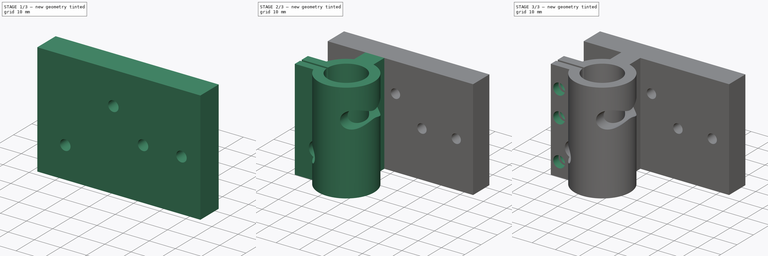
[diagram: build sequence overview — one tinted view per stage of 3, left to right]
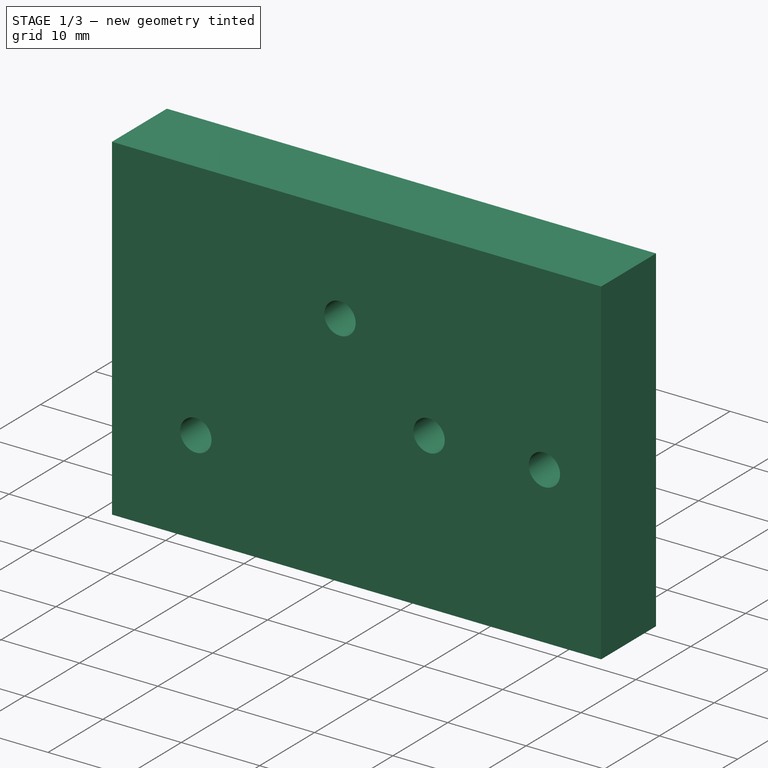
[diagram: stage 1 of 3 — iso view after this stage's code; geometry added in this stage tinted green]
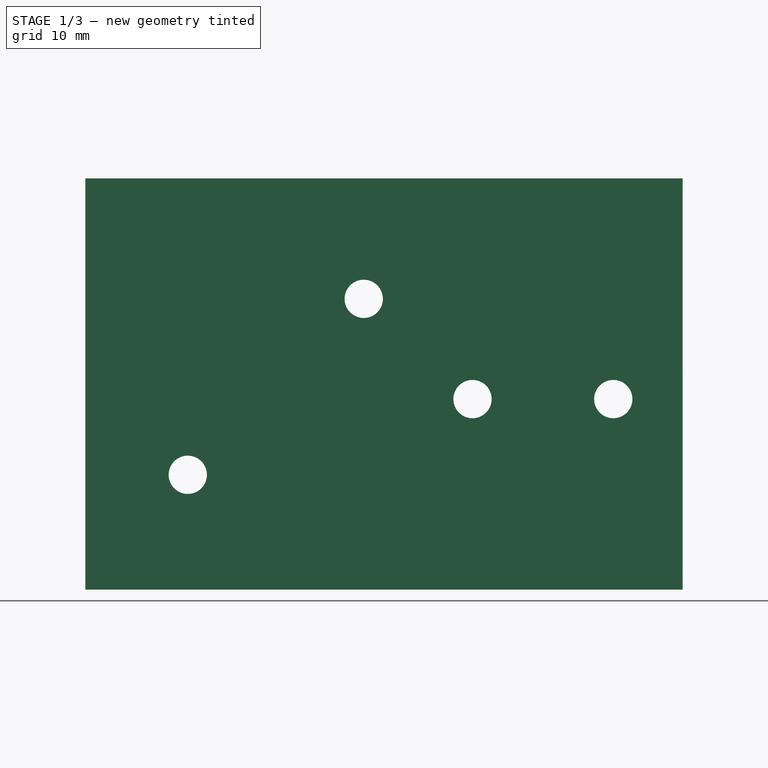
[diagram: stage 1 of 3 — front view after this stage's code; geometry added in this stage tinted green]
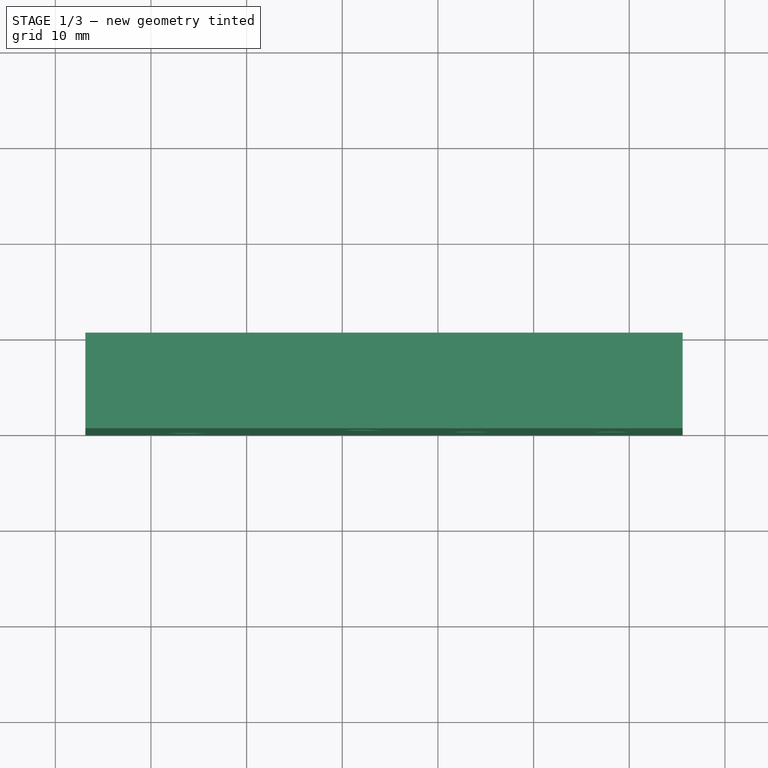
[diagram: stage 1 of 3 — top view after this stage's code; geometry added in this stage tinted green]
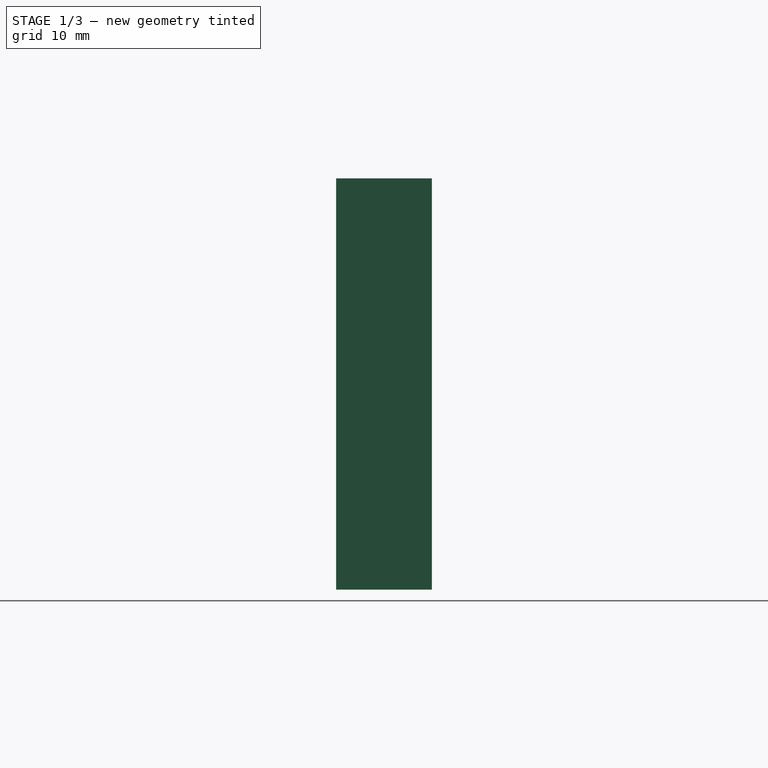
[diagram: stage 1 of 3 — right view after this stage's code; geometry added in this stage tinted green]
FCSTD DOCUMENT  (FreeCAD 0.19R24276 (Git))
Label: Fäste roterande fil ender3
License: All rights reserved
LicenseURL: http://en.wikipedia.org/wiki/All_rights_reserved
objects: Sketcher::SketchObject×7, PartDesign::Pocket×4, PartDesign::Pad×3, Image::ImagePlane×1, PartDesign::Body×1
note: 22 computed .brp shape members not serialized (recipe doc carries the construction recipe); baked Part::Feature solids carry a one-line shape summary decoded from their .brp

FEATURE [Image::ImagePlane] ImagePlane
  Placement = pos=(0,0,0) rot=(-1,0,0;4.71239rad)
  XSize = 142.846
  YSize = 191.791
FEATURE [Sketcher::SketchObject] Sketch
  FullyConstrained = false
  MapMode = 5
  Placement = pos=(0,0,0) rot=(1,0,0;1.5708rad)
  Support = -> [XZ_Plane]
  sketch-geometry (8):
    g0: Circle CenterX=-16.1509 CenterY=-10.9916 CenterZ=0 NormalX=0 NormalY=0 NormalZ=1 AngleXU=0 Radius=2
    g1: Circle CenterX=2.24296 CenterY=7.40224 CenterZ=0 NormalX=0 NormalY=0 NormalZ=1 AngleXU=0 Radius=2
    g2: Circle CenterX=13.6137 CenterY=-3.07666 CenterZ=0 NormalX=0 NormalY=0 NormalZ=1 AngleXU=0 Radius=2
    g3: Circle CenterX=28.3287 CenterY=-3.07666 CenterZ=0 NormalX=0 NormalY=0 NormalZ=1 AngleXU=0 Radius=2
    g4: LineSegment StartX=-26.8527 StartY=20 StartZ=0 EndX=35.5748 EndY=20 EndZ=0
    g5: LineSegment StartX=35.5748 StartY=20 StartZ=0 EndX=35.5748 EndY=-23 EndZ=0
    g6: LineSegment StartX=35.5748 StartY=-23 StartZ=0 EndX=-26.8527 EndY=-23 EndZ=0
    g7: LineSegment StartX=-26.8527 StartY=-23 StartZ=0 EndX=-26.8527 EndY=20 EndZ=0
  constraints (14):
    c: Coincident(g4,g5)
    c: Coincident(g5,g6)
    c: Coincident(g6,g7)
    c: Coincident(g7,g4)
    c: Horizontal(g4)
    c: Horizontal(g6)
    c: Vertical(g5)
    c: Vertical(g7)
    c: Radius(g1) = 2
    c: Radius(g0) = 2
    c: Radius(g2) = 2
    c: Radius(g3) = 2
    c: DistanceY(g-1,g4) = 20
    c: DistanceY(g7,g7) = 43
FEATURE [PartDesign::Pad] Pad
  Direction = (1,1,1)
  Length = 10
  Length2 = 100
  Placement = pos=(0,0,0) rot=(1,0,0;1.5708rad)
  Profile = -> Sketch
  Type = 0
FEATURE [Sketcher::SketchObject] Sketch001
  FullyConstrained = false
  MapMode = 5
  Placement = pos=(0,0,0) rot=(1,0,0;1.5708rad)
  Support = -> [XZ_Plane]
  sketch-geometry (4):
    g0: Circle CenterX=-16.2402 CenterY=9.93206 CenterZ=0 NormalX=0 NormalY=0 NormalZ=1 AngleXU=0 Radius=5.42474
    g1: Circle CenterX=24.0033 CenterY=9.59762 CenterZ=0 NormalX=0 NormalY=0 NormalZ=1 AngleXU=0 Radius=5.64478
    g2: Circle CenterX=13.5244 CenterY=-3.11083 CenterZ=0 NormalX=0 NormalY=0 NormalZ=1 AngleXU=0 Radius=3.63116
    g3: Circle CenterX=28.1279 CenterY=-2.99936 CenterZ=0 NormalX=0 NormalY=0 NormalZ=1 AngleXU=0 Radius=3.79188
FEATURE [PartDesign::Pocket] Pocket
  BaseFeature = -> Pad
  Length = 5
  Length2 = 100
  Placement = pos=(0,0,0) rot=(1,0,0;1.5708rad)
  Profile = -> Sketch001
  Reversed = true
  Type = 0
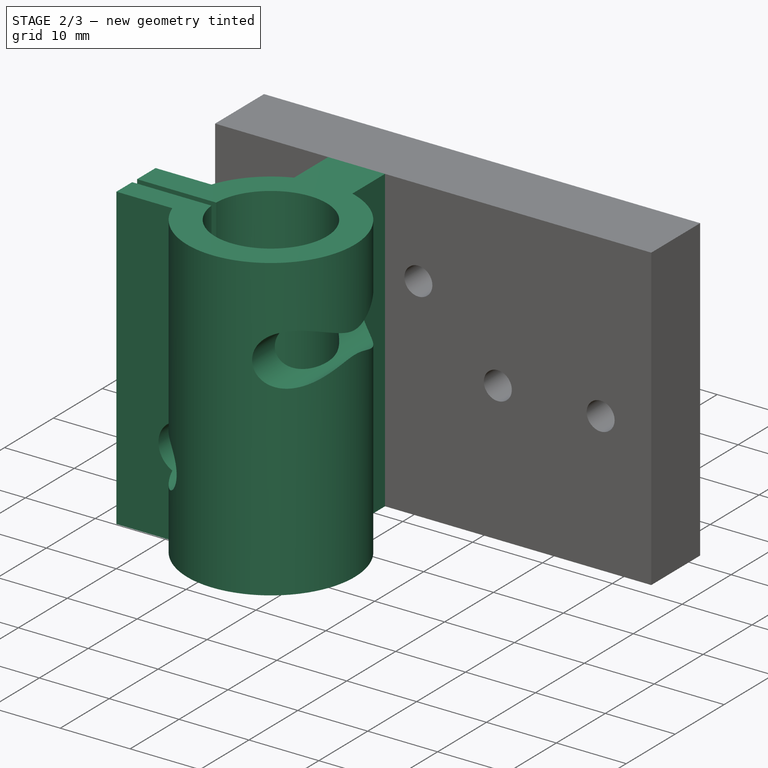
[diagram: stage 2 of 3 — iso view after this stage's code; geometry added in this stage tinted green]
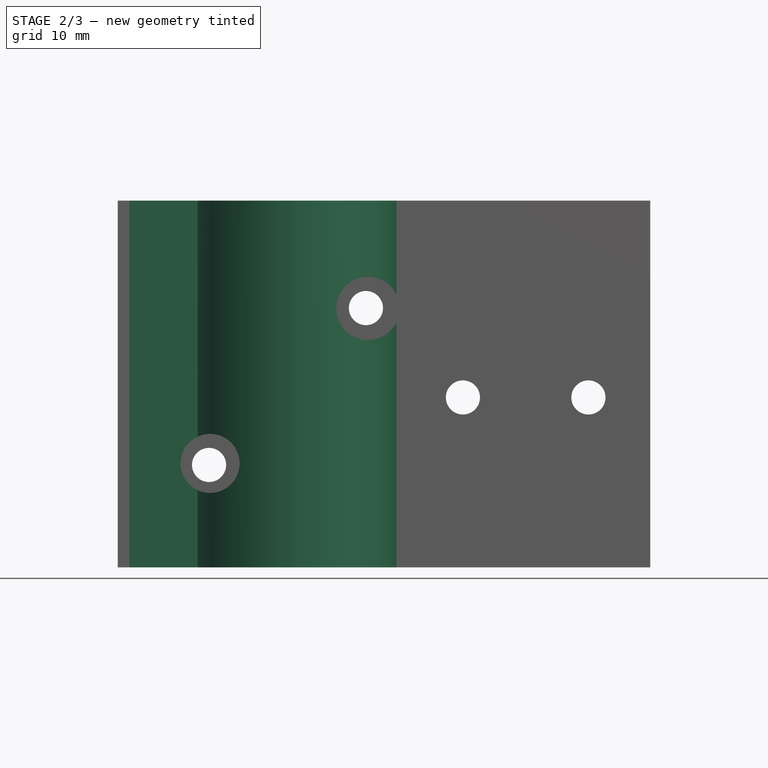
[diagram: stage 2 of 3 — front view after this stage's code; geometry added in this stage tinted green]
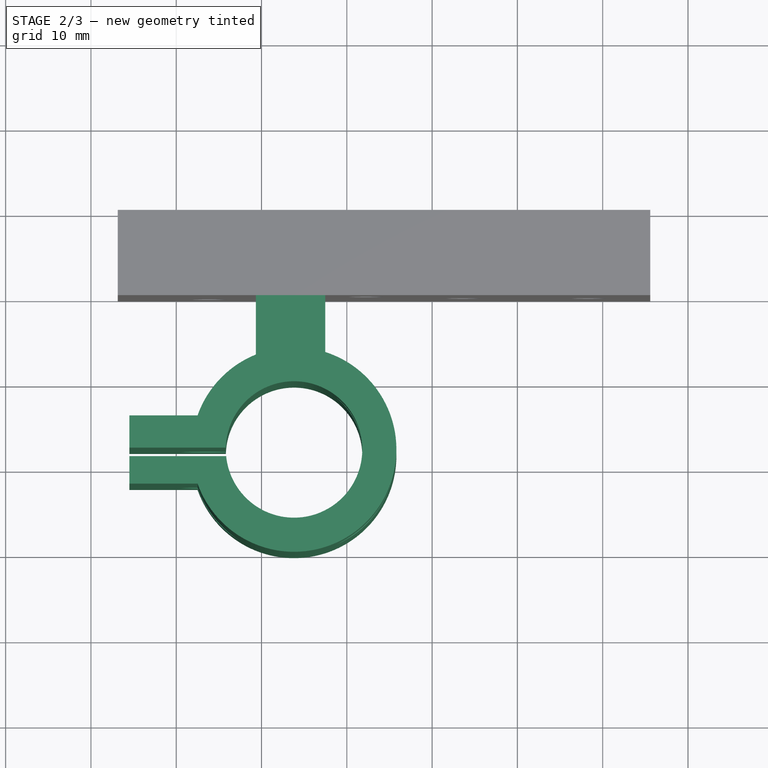
[diagram: stage 2 of 3 — top view after this stage's code; geometry added in this stage tinted green]
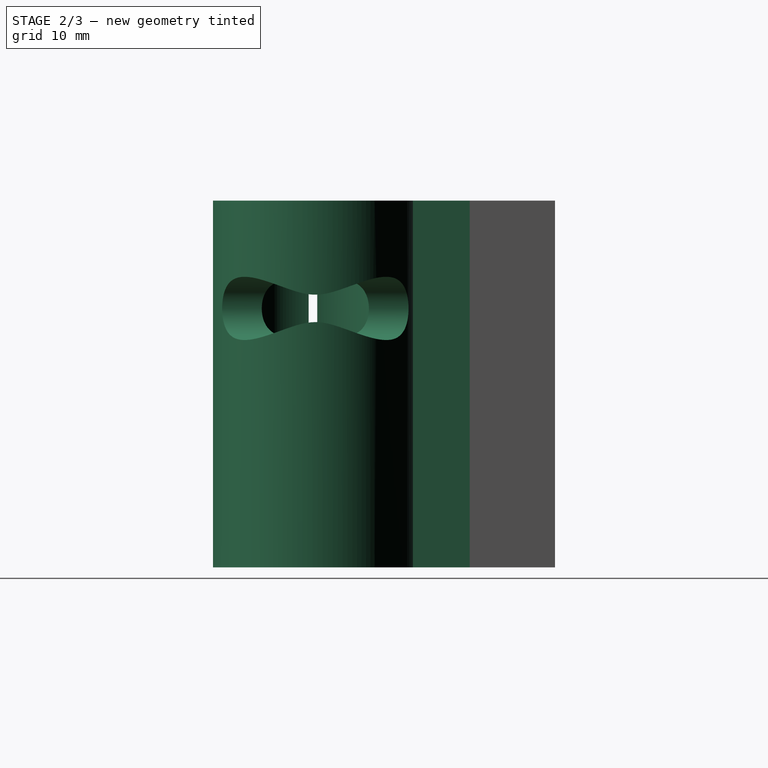
[diagram: stage 2 of 3 — right view after this stage's code; geometry added in this stage tinted green]
FEATURE [Sketcher::SketchObject] Sketch002
  FullyConstrained = false
  MapMode = 5
  Placement = pos=(0,0,0) rot=(1,0,0;1.5708rad)
  Support = -> [XZ_Plane]
  sketch-geometry (4):
    g0: LineSegment StartX=-2.52843 StartY=20 StartZ=0 EndX=-10.6663 EndY=20 EndZ=0
    g1: LineSegment StartX=-10.6663 StartY=20 StartZ=0 EndX=-10.6663 EndY=-23 EndZ=0
    g2: LineSegment StartX=-10.6663 StartY=-23 StartZ=0 EndX=-2.52843 EndY=-23 EndZ=0
    g3: LineSegment StartX=-2.52843 StartY=-23 StartZ=0 EndX=-2.52843 EndY=20 EndZ=0
  constraints (10):
    c: Coincident(g0,g1)
    c: Coincident(g1,g2)
    c: Coincident(g2,g3)
    c: Coincident(g3,g0)
    c: Horizontal(g0)
    c: Horizontal(g2)
    c: Vertical(g1)
    c: Vertical(g3)
    c: DistanceY(g-1,g0) = 20
    c: DistanceY(g3,g3) = 43
FEATURE [PartDesign::Pad] Pad001
  BaseFeature = -> Pocket
  Direction = (1,1,1)
  Length = 20
  Length2 = 100
  Placement = pos=(0,0,0) rot=(1,0,0;1.5708rad)
  Profile = -> Sketch002
  Type = 0
FEATURE [Sketcher::SketchObject] Sketch003
  AttachmentOffset = pos=(0,0,20) rot=(0,0,1;0rad)
  FullyConstrained = false
  MapMode = 5
  Placement = pos=(0,0,20) rot=(0,0,1;0rad)
  Support = -> [XY_Plane]
  sketch-geometry (8):
    g0: ArcOfCircle CenterX=-6.18389 CenterY=-28.1006 CenterZ=0 NormalX=0 NormalY=0 NormalZ=1 AngleXU=0 Radius=8 StartAngle=3.23937 EndAngle=9.3974
    g1: LineSegment StartX=-25.497 StartY=-24.1022 StartZ=0 EndX=-17.4982 EndY=-24.1022 EndZ=0
    g2: LineSegment StartX=-17.497 StartY=-32.1022 StartZ=0 EndX=-25.497 EndY=-32.1022 EndZ=0
    g3: LineSegment StartX=-25.497 StartY=-32.1022 StartZ=0 EndX=-25.497 EndY=-28.8816 EndZ=0
    g4: LineSegment StartX=-25.497 StartY=-27.8816 StartZ=0 EndX=-14.1809 EndY=-27.8816 EndZ=0
    g5: LineSegment StartX=-25.497 StartY=-28.8816 StartZ=0 EndX=-14.1457 EndY=-28.8816 EndZ=0
    g6: LineSegment StartX=-25.497 StartY=-27.8816 StartZ=0 EndX=-25.497 EndY=-24.1022 EndZ=0
    g7: ArcOfCircle CenterX=-6.18389 CenterY=-28.1006 CenterZ=0 NormalX=0 NormalY=0 NormalZ=1 AngleXU=0 Radius=12 StartAngle=3.48157 EndAngle=9.08508
  constraints (18):
    c: Radius(g0) = 8
    c: Coincident(g2,g3)
    c: Coincident(g6,g1)
    c: Horizontal(g1)
    c: Horizontal(g2)
    c: Vertical(g3)
    c: DistanceY(g3,g6) = 8
    c: DistanceX(g2,g2) = 8
    c: Horizontal(g4)
    c: Horizontal(g5)
    c: DistanceY(g5,g4) = 1
    c: Coincident(g0,g5)
    c: Coincident(g0,g4)
    c: Coincident(g3,g5)
    c: Coincident(g6,g4)
    c: Tangent(g3,g6)
    c: Coincident(g7,g1)
    c: Coincident(g7,g2)
FEATURE [PartDesign::Pad] Pad002
  BaseFeature = -> Pad001
  Direction = (0,0,1)
  Length = 43
  Length2 = 100
  Placement = pos=(0,0,0) rot=(1,0,0;1.5708rad)
  Profile = -> Sketch003
  Reversed = true
  Type = 0
  UseCustomVector = true
FEATURE [Sketcher::SketchObject] Sketch004
  AttachmentOffset = pos=(0,0,16) rot=(0,0,1;0rad)
  FullyConstrained = false
  MapMode = 5
  Placement = pos=(0,-16,-3.6e-15) rot=(1,0,0;1.5708rad)
  Support = -> [XZ_Plane]
  sketch-geometry (2):
    g0: Circle CenterX=-16.0271 CenterY=-10.8084 CenterZ=0 NormalX=0 NormalY=0 NormalZ=1 AngleXU=0 Radius=3.45761
    g1: Circle CenterX=2.47818 CenterY=7.36249 CenterZ=0 NormalX=0 NormalY=0 NormalZ=1 AngleXU=0 Radius=3.70569
FEATURE [PartDesign::Pocket] Pocket001
  BaseFeature = -> Pad002
  Length = 25
  Length2 = 100
  Placement = pos=(0,0,0) rot=(1,0,0;1.5708rad)
  Profile = -> Sketch004
  Reversed = true
  Type = 0
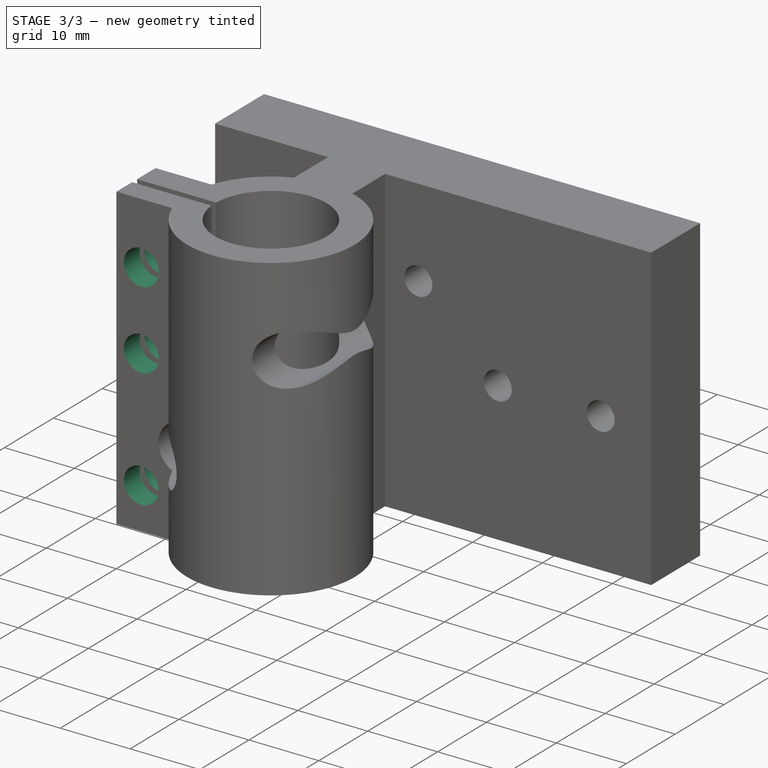
[diagram: stage 3 of 3 — iso view after this stage's code; geometry added in this stage tinted green]
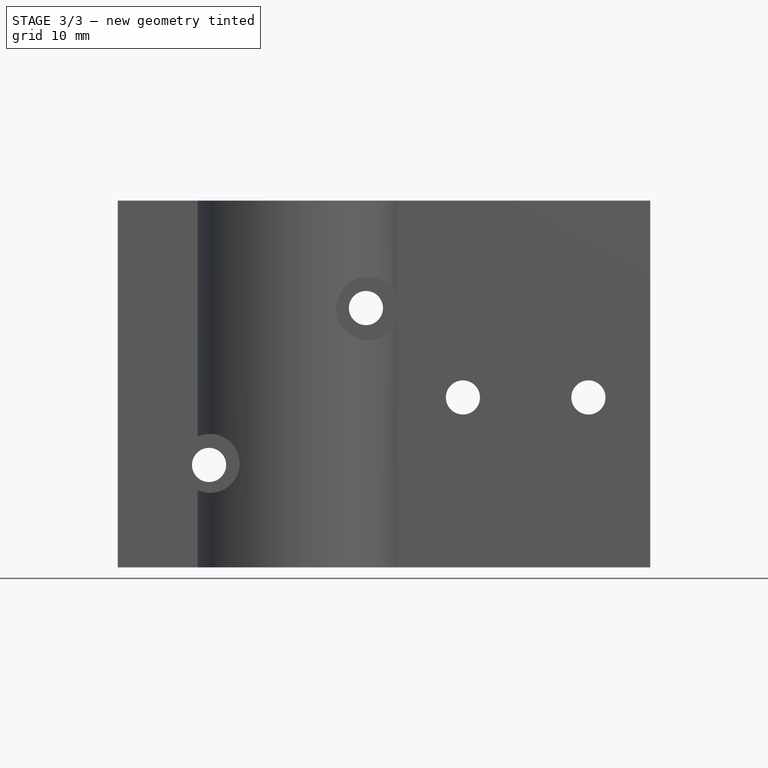
[diagram: stage 3 of 3 — front view after this stage's code; geometry added in this stage tinted green]
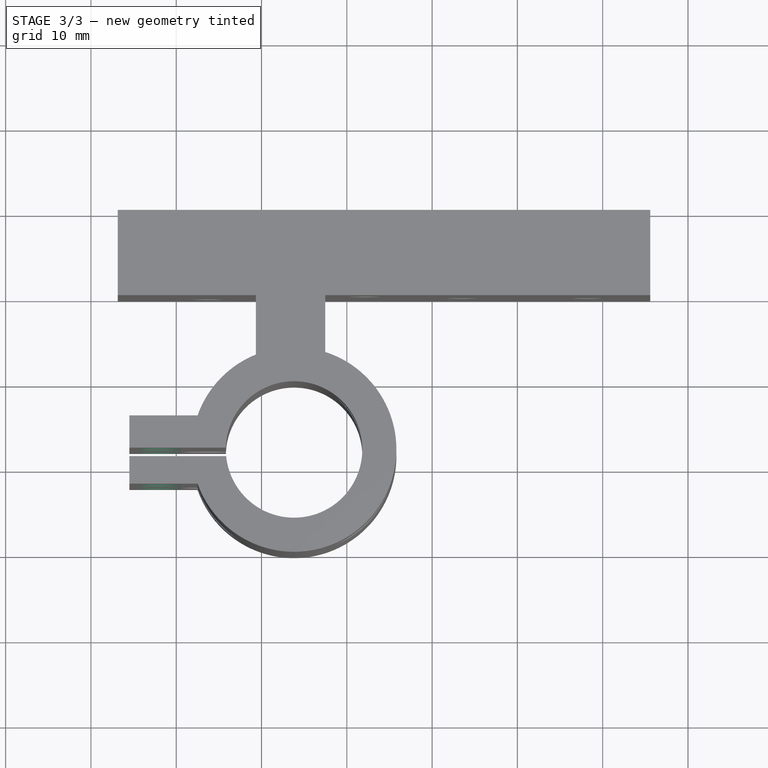
[diagram: stage 3 of 3 — top view after this stage's code; geometry added in this stage tinted green]
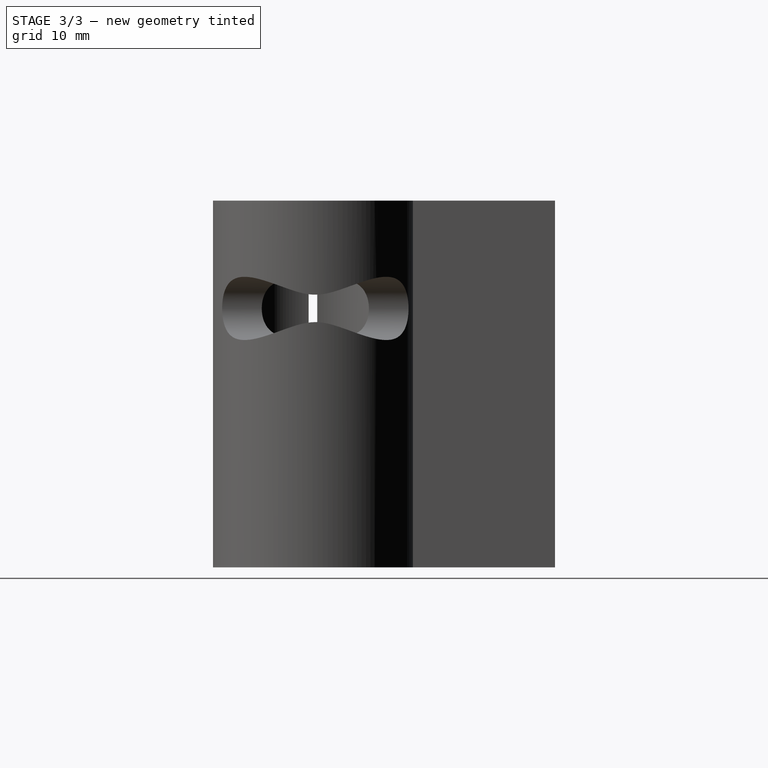
[diagram: stage 3 of 3 — right view after this stage's code; geometry added in this stage tinted green]
FEATURE [Sketcher::SketchObject] Sketch005
  AttachmentOffset = pos=(0,0,24) rot=(0,0,1;0rad)
  FullyConstrained = false
  MapMode = 5
  Placement = pos=(0,-24,-5.3e-15) rot=(1,0,0;1.5708rad)
  Support = -> [XZ_Plane]
  sketch-geometry (3):
    g0: Circle CenterX=-21.9354 CenterY=11.1527 CenterZ=0 NormalX=0 NormalY=0 NormalZ=1 AngleXU=0 Radius=2.5
    g1: Circle CenterX=-21.9354 CenterY=-17.0511 CenterZ=0 NormalX=0 NormalY=0 NormalZ=1 AngleXU=0 Radius=2.5
    g2: Circle CenterX=-21.9354 CenterY=0 CenterZ=0 NormalX=0 NormalY=0 NormalZ=1 AngleXU=0 Radius=2.5
  constraints (6):
    c: PointOnObject(g2,g-1)
    c: Vertical(g0,g2)
    c: Vertical(g2,g1)
    c: Radius(g0) = 2.5
    c: Equal(g0,g2)
    c: Equal(g0,g1)
FEATURE [PartDesign::Pocket] Pocket002
  BaseFeature = -> Pocket001
  Length = 10
  Length2 = 100
  Placement = pos=(0,0,0) rot=(1,0,0;1.5708rad)
  Profile = -> Sketch005
  Reversed = true
  Type = 0
FEATURE [Sketcher::SketchObject] Sketch006
  AttachmentOffset = pos=(0,0,24) rot=(0,0,1;0rad)
  FullyConstrained = false
  MapMode = 5
  Placement = pos=(0,-24,-5.3e-15) rot=(1,0,0;1.5708rad)
  Support = -> [XZ_Plane]
  sketch-geometry (21):
    g0: LineSegment StartX=-19.1087 StartY=8.97781 StartZ=0 EndX=-19.1087 EndY=13.0193 EndZ=0
    g1: LineSegment StartX=-19.1087 StartY=13.0193 StartZ=0 EndX=-22.6087 EndY=15.04 EndZ=0
    g2: LineSegment StartX=-22.6087 StartY=15.04 StartZ=0 EndX=-26.1087 EndY=13.0193 EndZ=0
    g3: LineSegment StartX=-26.1087 StartY=13.0193 StartZ=0 EndX=-26.1087 EndY=8.97781 EndZ=0
    g4: LineSegment StartX=-26.1087 StartY=8.97781 StartZ=0 EndX=-22.6087 EndY=6.95709 EndZ=0
    g5: LineSegment StartX=-22.6087 StartY=6.95709 StartZ=0 EndX=-19.1087 EndY=8.97781 EndZ=0
    g6: Circle CenterX=-22.6087 CenterY=10.9985 CenterZ=0 NormalX=0 NormalY=0 NormalZ=1 AngleXU=0 Radius=4.04145
    g7: LineSegment StartX=-19.1087 StartY=-2.02073 StartZ=0 EndX=-19.1087 EndY=2.02073 EndZ=0
    g8: LineSegment StartX=-19.1087 StartY=2.02073 StartZ=0 EndX=-22.6087 EndY=4.04145 EndZ=0
    g9: LineSegment StartX=-22.6087 StartY=4.04145 StartZ=0 EndX=-26.1087 EndY=2.02073 EndZ=0
    g10: LineSegment StartX=-26.1087 StartY=2.02073 StartZ=0 EndX=-26.1087 EndY=-2.02073 EndZ=0
    g11: LineSegment StartX=-26.1087 StartY=-2.02073 StartZ=0 EndX=-22.6087 EndY=-4.04145 EndZ=0
    g12: LineSegment StartX=-22.6087 StartY=-4.04145 StartZ=0 EndX=-19.1087 EndY=-2.02073 EndZ=0
    g13: Circle CenterX=-22.6087 CenterY=0 CenterZ=0 NormalX=0 NormalY=0 NormalZ=1 AngleXU=0 Radius=4.04145
    g14: LineSegment StartX=-19.1087 StartY=-19.6764 StartZ=0 EndX=-19.1087 EndY=-15.635 EndZ=0
    g15: LineSegment StartX=-19.1087 StartY=-15.635 StartZ=0 EndX=-22.6087 EndY=-13.6143 EndZ=0
    g16: LineSegment StartX=-22.6087 StartY=-13.6143 StartZ=0 EndX=-26.1087 EndY=-15.635 EndZ=0
    g17: LineSegment StartX=-26.1087 StartY=-15.635 StartZ=0 EndX=-26.1087 EndY=-19.6764 EndZ=0
    g18: LineSegment StartX=-26.1087 StartY=-19.6764 StartZ=0 EndX=-22.6087 EndY=-21.6972 EndZ=0
    g19: LineSegment StartX=-22.6087 StartY=-21.6972 StartZ=0 EndX=-19.1087 EndY=-19.6764 EndZ=0
    g20: Circle CenterX=-22.6087 CenterY=-17.6557 CenterZ=0 NormalX=0 NormalY=0 NormalZ=1 AngleXU=0 Radius=4.04145
  constraints (48):
    c: Coincident(g0,g1)
    c: Coincident(g1,g2)
    c: Coincident(g2,g3)
    c: Coincident(g3,g4)
    c: Coincident(g4,g5)
    c: Coincident(g5,g0)
    c: Equal(g0, g1-g5) x5
    c: PointOnObject(g0,g6)
    c: PointOnObject(g1,g6)
    c: PointOnObject(g2,g6)
    c: PointOnObject(g3,g6)
    c: PointOnObject(g4,g6)
    c: PointOnObject(g5,g6)
    c: Coincident(g7,g8)
    c: Coincident(g8,g9)
    c: Coincident(g9,g10)
    c: Coincident(g10,g11)
    c: Coincident(g11,g12)
    c: Coincident(g12,g7)
    c: Equal(g7, g8-g12) x5
    c: PointOnObject(g7,g13)
    c: PointOnObject(g8,g13)
    c: PointOnObject(g9,g13)
    c: PointOnObject(g10,g13)
    c: PointOnObject(g11,g13)
    c: PointOnObject(g12,g13)
    c: PointOnObject(g13,g-1)
    c: Coincident(g14,g15)
    c: Coincident(g15,g16)
    c: Coincident(g16,g17)
    c: Coincident(g17,g18)
    c: Coincident(g18,g19)
    c: Coincident(g19,g14)
    c: Equal(g14, g15-g19) x5
    c: PointOnObject(g14,g20)
    c: PointOnObject(g15,g20)
    c: PointOnObject(g16,g20)
    c: PointOnObject(g17,g20)
    c: PointOnObject(g18,g20)
    c: PointOnObject(g19,g20)
    c: Vertical(g6,g13)
    c: Vertical(g13,g20)
    c: Vertical(g2,g3)
    c: Vertical(g3,g9)
    c: Vertical(g9,g16)
    c: DistanceX(g2,g0) = 7
    c: Equal(g6,g13)
    c: Equal(g13,g20)
FEATURE [PartDesign::Pocket] Pocket003
  BaseFeature = -> Pocket002
  Length = 1
  Length2 = 100
  Placement = pos=(0,0,0) rot=(1,0,0;1.5708rad)
  Profile = -> Sketch006
  Reversed = true
  Type = 0
FEATURE [PartDesign::Body] Body
  Group = -> [Sketch,Pad,Sketch001,Pocket,Sketch002,Pad001,Sketch003,Pad002,Sketch004,Pocket001,Sketch005,Pocket002,Sketch006,Pocket003]
  Origin = -> Origin
  Tip = -> Pocket003
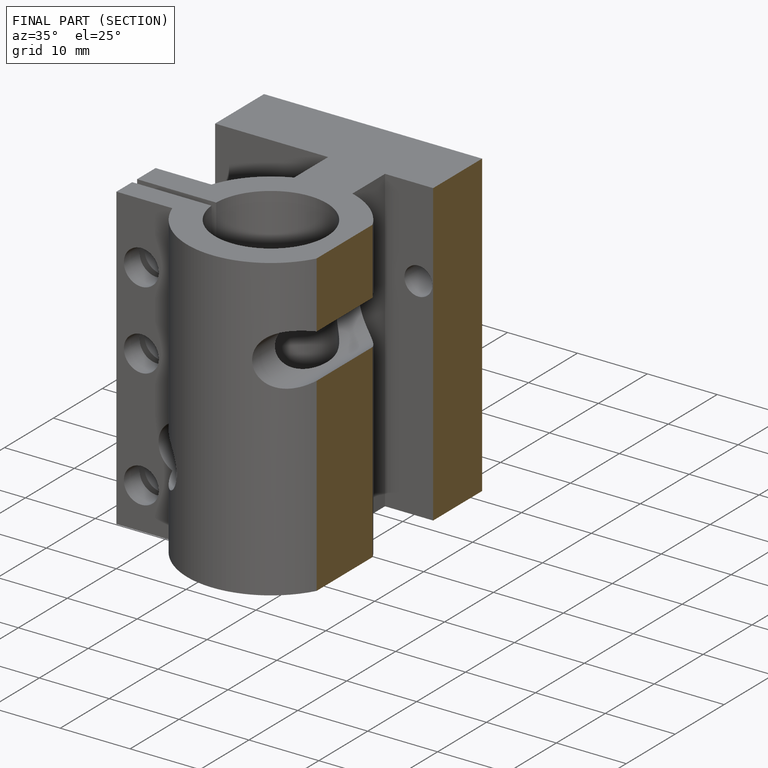
[diagram: finished part — half-section view (interior)]
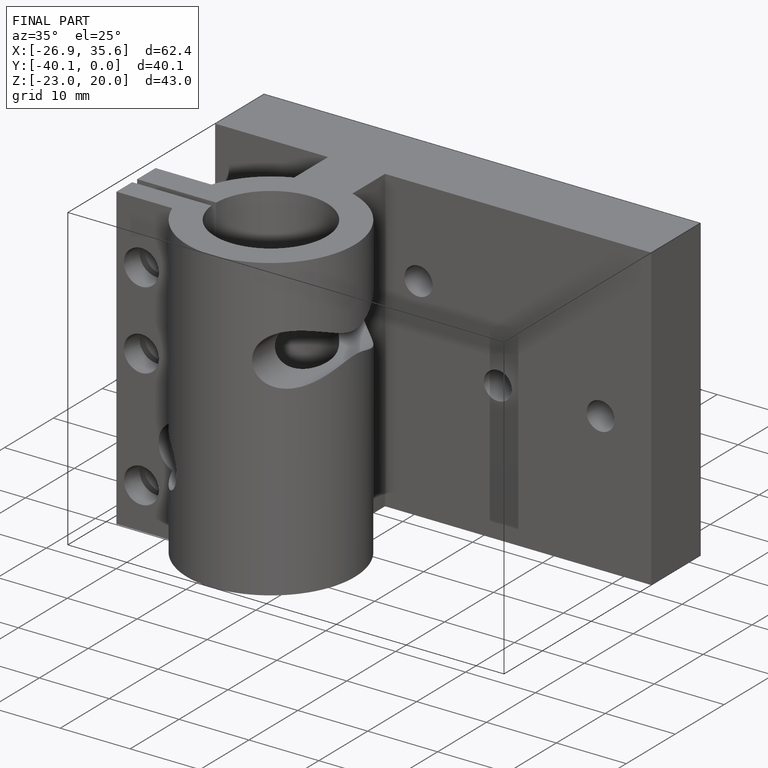
[diagram: finished part — iso view with bounding-box wireframe]
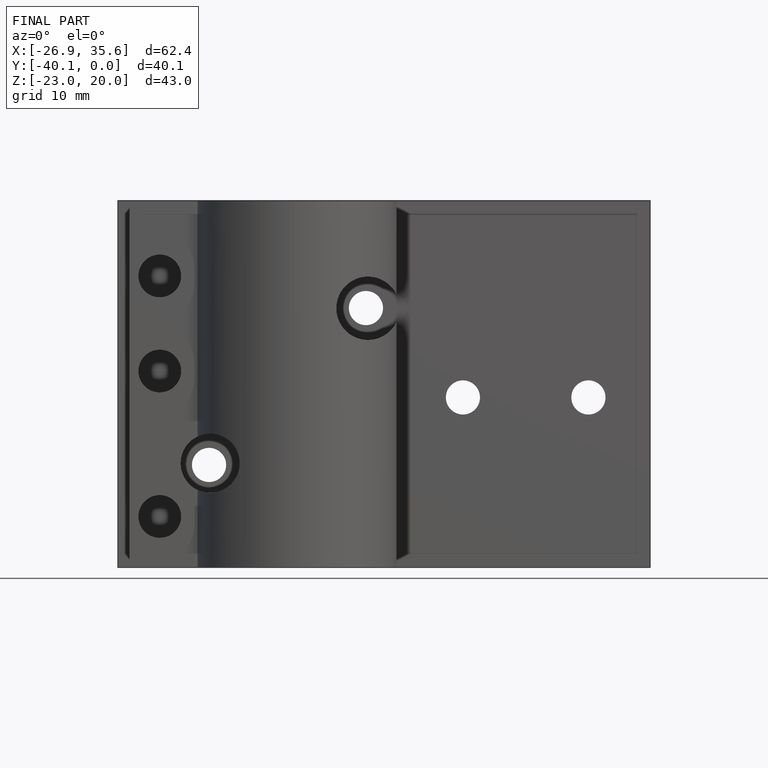
[diagram: finished part — front view with bounding-box wireframe]
